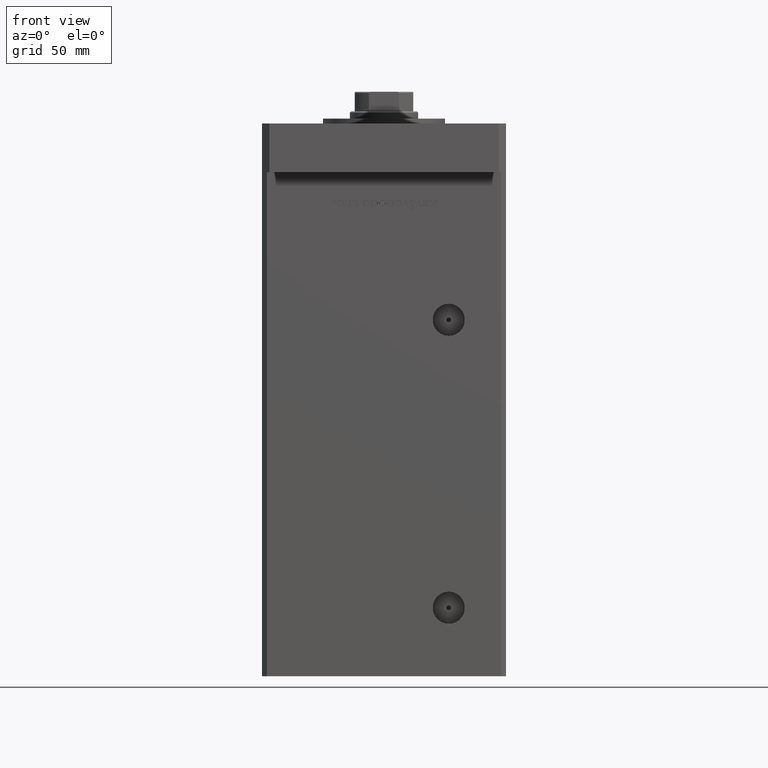
[diagram: clean part render]
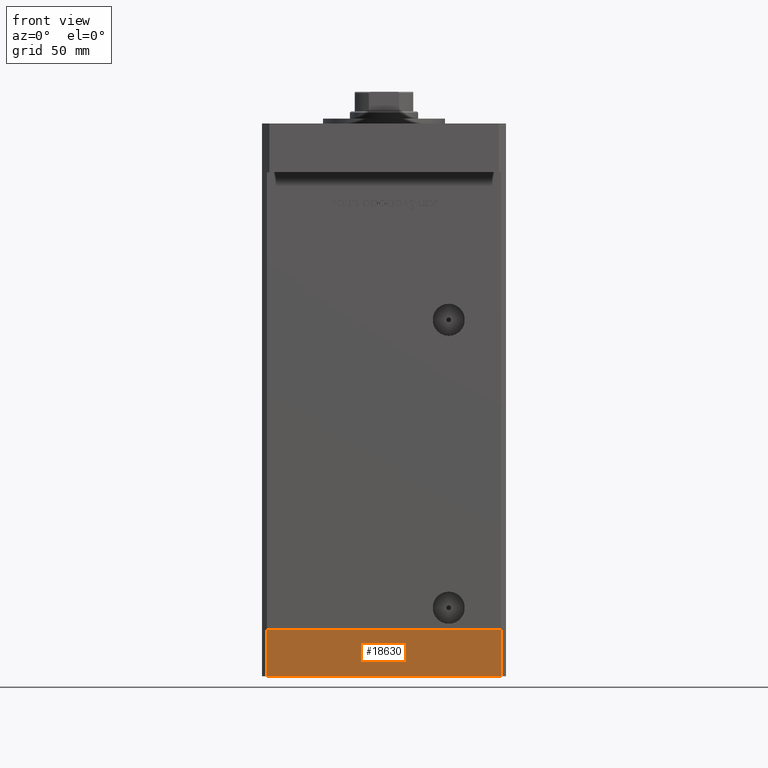
[diagram: same view with one face highlighted and labeled with its STEP entity id]
A machine part, front view. The second image highlights one B-rep face of the part: STEP entity #18630.
In plain terms, the highlighted planar face has unit normal (0, -1, -0).
Its self-contained STEP definition (entity closure, byte-faithful):
#2649 = VERTEX_POINT ( 'NONE', #18069 ) ;
#5572 = EDGE_CURVE ( 'NONE', #41321, #24591, #39132, .T. ) ;
#8558 = DIRECTION ( 'NONE',  ( 0.000000000000000000, -0.000000000000000000, -1.000000000000000000 ) ) ;
#9475 = CARTESIAN_POINT ( 'NONE',  ( -47.99999999999999289, -43.50000000000001421, -19.00000000000000000 ) ) ;
#11484 = DIRECTION ( 'NONE',  ( 1.000000000000000000, 0.000000000000000000, 0.000000000000000000 ) ) ;
#12702 = VECTOR ( 'NONE', #43494, 1000.000000000000000 ) ;
#12774 = CARTESIAN_POINT ( 'NONE',  ( -47.99999999999999289, -43.50000000000001421, -19.00000000000000000 ) ) ;
#17821 = FACE_OUTER_BOUND ( 'NONE', #37360, .T. ) ;
#18069 = CARTESIAN_POINT ( 'NONE',  ( -47.99999999999999289, -43.50000000000001421, 0.000000000000000000 ) ) ;
#18630 = ADVANCED_FACE ( 'NONE', ( #17821 ), #45928, .T. ) ;
#18672 = ORIENTED_EDGE ( 'NONE', *, *, #32772, .F. ) ;
#20401 = ORIENTED_EDGE ( 'NONE', *, *, #5572, .T. ) ;
#20699 = DIRECTION ( 'NONE',  ( 1.000000000000000000, 0.000000000000000000, 0.000000000000000000 ) ) ;
#23772 = CARTESIAN_POINT ( 'NONE',  ( -47.99999999999999289, -43.50000000000001421, -19.00000000000000000 ) ) ;
#23785 = CARTESIAN_POINT ( 'NONE',  ( 47.99999999999999289, -43.50000000000001421, 0.000000000000000000 ) ) ;
#24591 = VERTEX_POINT ( 'NONE', #23785 ) ;
#26288 = CARTESIAN_POINT ( 'NONE',  ( -47.99999999999999289, -43.50000000000001421, -19.00000000000000000 ) ) ;
#29602 = AXIS2_PLACEMENT_3D ( 'NONE', #26288, #38303, #8558 ) ;
#31602 = ORIENTED_EDGE ( 'NONE', *, *, #32654, .F. ) ;
#31674 = LINE ( 'NONE', #23772, #43055 ) ;
#32161 = LINE ( 'NONE', #37342, #52513 ) ;
#32654 = EDGE_CURVE ( 'NONE', #2649, #24591, #32161, .T. ) ;
#32772 = EDGE_CURVE ( 'NONE', #43824, #2649, #38428, .T. ) ;
#36770 = EDGE_CURVE ( 'NONE', #43824, #41321, #31674, .T. ) ;
#37342 = CARTESIAN_POINT ( 'NONE',  ( -47.99999999999999289, -43.50000000000001421, 0.000000000000000000 ) ) ;
#37360 = EDGE_LOOP ( 'NONE', ( #31602, #18672, #38974, #20401 ) ) ;
#38303 = DIRECTION ( 'NONE',  ( 0.000000000000000000, -1.000000000000000000, 0.000000000000000000 ) ) ;
#38428 = LINE ( 'NONE', #12774, #40314 ) ;
#38974 = ORIENTED_EDGE ( 'NONE', *, *, #36770, .T. ) ;
#39132 = LINE ( 'NONE', #46784, #12702 ) ;
#40314 = VECTOR ( 'NONE', #42785, 1000.000000000000000 ) ;
#41321 = VERTEX_POINT ( 'NONE', #45449 ) ;
#42785 = DIRECTION ( 'NONE',  ( 0.000000000000000000, 0.000000000000000000, 1.000000000000000000 ) ) ;
#43055 = VECTOR ( 'NONE', #11484, 1000.000000000000000 ) ;
#43494 = DIRECTION ( 'NONE',  ( 0.000000000000000000, 0.000000000000000000, 1.000000000000000000 ) ) ;
#43824 = VERTEX_POINT ( 'NONE', #9475 ) ;
#45449 = CARTESIAN_POINT ( 'NONE',  ( 47.99999999999999289, -43.50000000000001421, -19.00000000000000000 ) ) ;
#45928 = PLANE ( 'NONE',  #29602 ) ;
#46784 = CARTESIAN_POINT ( 'NONE',  ( 47.99999999999999289, -43.50000000000001421, -19.00000000000000000 ) ) ;
#52513 = VECTOR ( 'NONE', #20699, 1000.000000000000000 ) ;